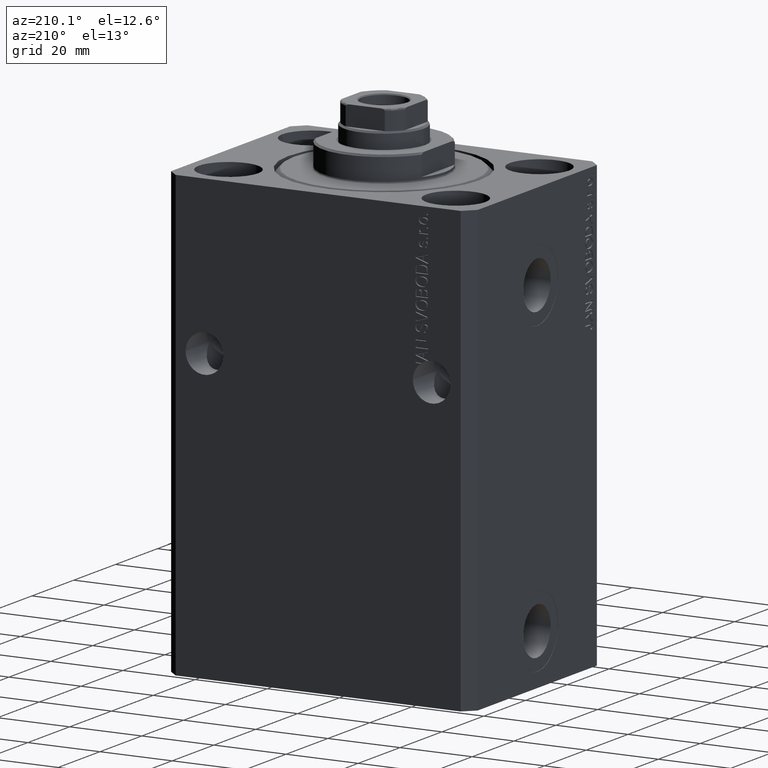
[diagram: clean part render]
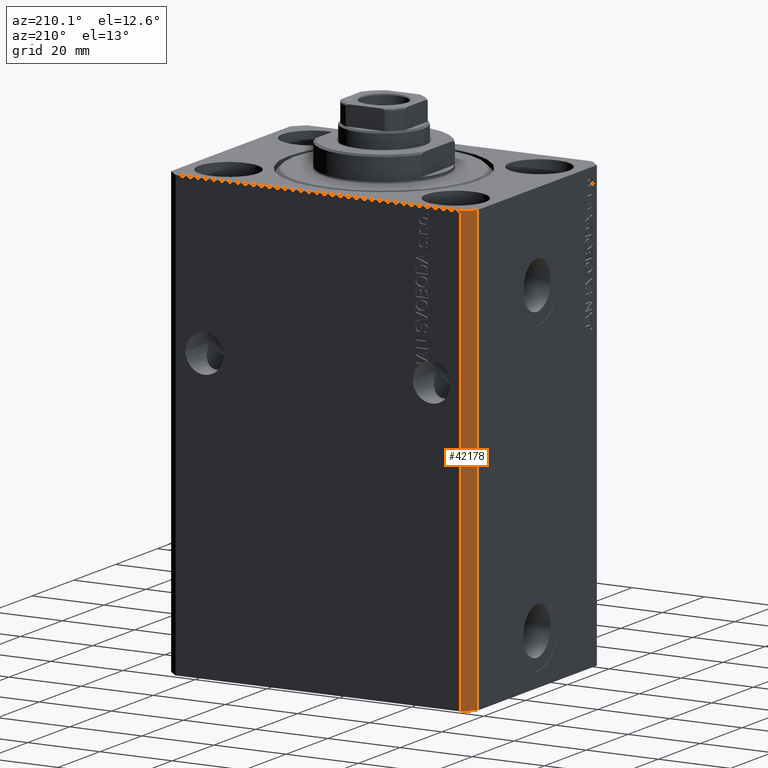
[diagram: same view with one face highlighted and labeled with its STEP entity id]
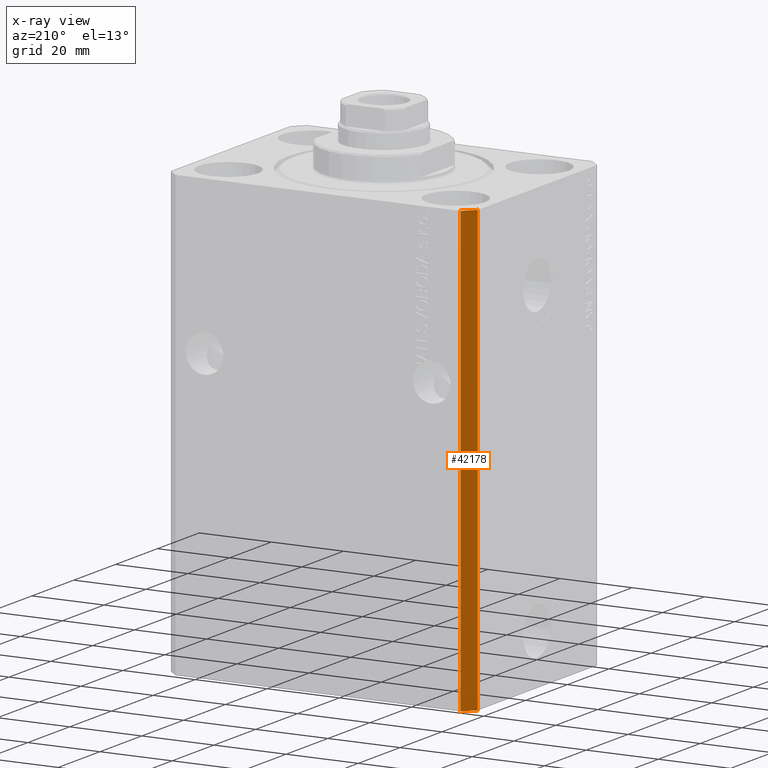
[diagram: x-ray of the same camera — body ghosted, the highlighted face saturated]
A machine part, auxiliary view. The second image highlights one B-rep face of the part: STEP entity #42178.
The next image is the same camera in x-ray: the body ghosted, the highlighted face saturated — about 0% of this face is hidden behind the body in this view.
In plain terms, the highlighted planar face has unit normal (-0.7071, 0.7071, 0).
Its self-contained STEP definition (entity closure, byte-faithful):
#337 = AXIS2_PLACEMENT_3D ( 'NONE', #40785, #13170, #26566 ) ;
#1121 = VECTOR ( 'NONE', #40033, 1000.000000000000000 ) ;
#2293 = VERTEX_POINT ( 'NONE', #5978 ) ;
#3380 = DIRECTION ( 'NONE',  ( 0.000000000000000000, 0.000000000000000000, 1.000000000000000000 ) ) ;
#3659 = EDGE_CURVE ( 'NONE', #17031, #35807, #36430, .T. ) ;
#4187 = CARTESIAN_POINT ( 'NONE',  ( -39.50000000000000711, 31.50000000000000000, -123.0000000000000000 ) ) ;
#5978 = CARTESIAN_POINT ( 'NONE',  ( -39.50000000000000711, 31.50000000000000000, 0.000000000000000000 ) ) ;
#6074 = DIRECTION ( 'NONE',  ( -0.7071067811865471286, -0.7071067811865479058, 0.000000000000000000 ) ) ;
#6122 = FACE_OUTER_BOUND ( 'NONE', #41759, .T. ) ;
#9002 = EDGE_CURVE ( 'NONE', #35807, #20781, #13836, .T. ) ;
#13170 = DIRECTION ( 'NONE',  ( -0.7071067811865479058, 0.7071067811865472397, 0.000000000000000000 ) ) ;
#13836 = LINE ( 'NONE', #37843, #37303 ) ;
#14125 = LINE ( 'NONE', #41739, #15469 ) ;
#15469 = VECTOR ( 'NONE', #34951, 1000.000000000000000 ) ;
#17031 = VERTEX_POINT ( 'NONE', #4187 ) ;
#17807 = CARTESIAN_POINT ( 'NONE',  ( -42.50000000000000000, 28.50000000000000000, -123.0000000000000000 ) ) ;
#20544 = ORIENTED_EDGE ( 'NONE', *, *, #36243, .F. ) ;
#20781 = VERTEX_POINT ( 'NONE', #21988 ) ;
#21988 = CARTESIAN_POINT ( 'NONE',  ( -42.50000000000000000, 28.50000000000000000, 0.000000000000000000 ) ) ;
#23056 = ORIENTED_EDGE ( 'NONE', *, *, #3659, .T. ) ;
#26566 = DIRECTION ( 'NONE',  ( -0.7071067811865472397, -0.7071067811865479058, 0.000000000000000000 ) ) ;
#27246 = PLANE ( 'NONE',  #337 ) ;
#29454 = LINE ( 'NONE', #44617, #30009 ) ;
#30009 = VECTOR ( 'NONE', #6074, 1000.000000000000000 ) ;
#33693 = CARTESIAN_POINT ( 'NONE',  ( -39.50000000000000711, 31.50000000000000000, -123.0000000000000000 ) ) ;
#34951 = DIRECTION ( 'NONE',  ( 0.000000000000000000, 0.000000000000000000, 1.000000000000000000 ) ) ;
#35807 = VERTEX_POINT ( 'NONE', #17807 ) ;
#36243 = EDGE_CURVE ( 'NONE', #17031, #2293, #14125, .T. ) ;
#36430 = LINE ( 'NONE', #33693, #1121 ) ;
#37303 = VECTOR ( 'NONE', #3380, 1000.000000000000000 ) ;
#37843 = CARTESIAN_POINT ( 'NONE',  ( -42.50000000000000000, 28.50000000000000000, -123.0000000000000000 ) ) ;
#40033 = DIRECTION ( 'NONE',  ( -0.7071067811865471286, -0.7071067811865479058, 0.000000000000000000 ) ) ;
#40785 = CARTESIAN_POINT ( 'NONE',  ( -39.50000000000000711, 31.50000000000000000, -123.0000000000000000 ) ) ;
#41739 = CARTESIAN_POINT ( 'NONE',  ( -39.50000000000000711, 31.50000000000000000, -123.0000000000000000 ) ) ;
#41746 = ORIENTED_EDGE ( 'NONE', *, *, #9002, .T. ) ;
#41759 = EDGE_LOOP ( 'NONE', ( #44637, #20544, #23056, #41746 ) ) ;
#42178 = ADVANCED_FACE ( 'NONE', ( #6122 ), #27246, .T. ) ;
#43410 = EDGE_CURVE ( 'NONE', #2293, #20781, #29454, .T. ) ;
#44617 = CARTESIAN_POINT ( 'NONE',  ( -39.50000000000000711, 31.50000000000000000, 0.000000000000000000 ) ) ;
#44637 = ORIENTED_EDGE ( 'NONE', *, *, #43410, .F. ) ;